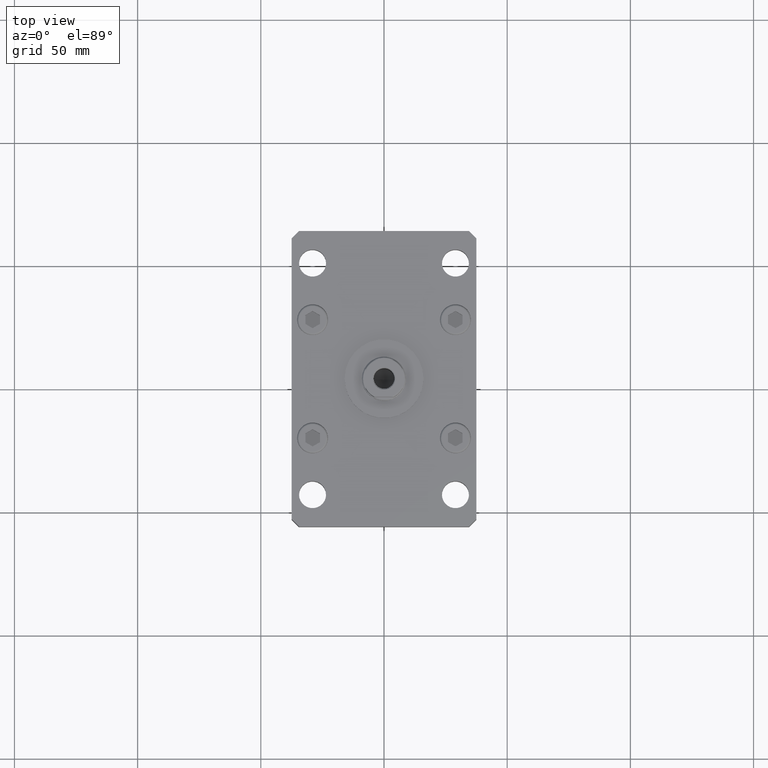
[diagram: clean part render]
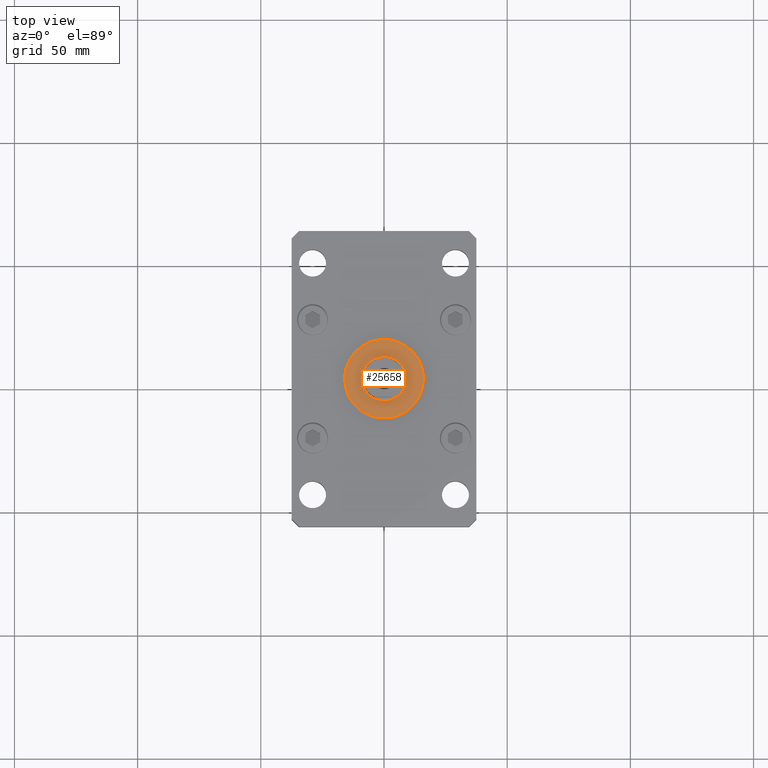
[diagram: same view with one face highlighted and labeled with its STEP entity id]
A machine part, top view. The second image highlights one B-rep face of the part: STEP entity #25658.
In plain terms, the highlighted planar face has unit normal (0, 0, 1).
Its self-contained STEP definition (entity closure, byte-faithful):
#1012 = CARTESIAN_POINT ( 'NONE',  ( 0.000000000000000000, 0.000000000000000000, 17.00000000000000000 ) ) ;
#2065 = PLANE ( 'NONE',  #17694 ) ;
#4028 = AXIS2_PLACEMENT_3D ( 'NONE', #28697, #12165, #49826 ) ;
#4722 = CARTESIAN_POINT ( 'NONE',  ( 16.00000000000000000, 1.959434878635765131E-15, 17.00000000000000000 ) ) ;
#5348 = FACE_OUTER_BOUND ( 'NONE', #9274, .T. ) ;
#6803 = ORIENTED_EDGE ( 'NONE', *, *, #21643, .F. ) ;
#8202 = DIRECTION ( 'NONE',  ( 1.000000000000000000, 0.000000000000000000, 0.000000000000000000 ) ) ;
#9084 = CARTESIAN_POINT ( 'NONE',  ( 0.000000000000000000, 0.000000000000000000, 17.00000000000000000 ) ) ;
#9274 = EDGE_LOOP ( 'NONE', ( #15069, #43803 ) ) ;
#9820 = VERTEX_POINT ( 'NONE', #38133 ) ;
#11587 = CIRCLE ( 'NONE', #21979, 9.000000000000000000 ) ;
#12165 = DIRECTION ( 'NONE',  ( 0.000000000000000000, 0.000000000000000000, 1.000000000000000000 ) ) ;
#13622 = VERTEX_POINT ( 'NONE', #4722 ) ;
#15069 = ORIENTED_EDGE ( 'NONE', *, *, #36562, .T. ) ;
#17694 = AXIS2_PLACEMENT_3D ( 'NONE', #1012, #35146, #51667 ) ;
#18504 = AXIS2_PLACEMENT_3D ( 'NONE', #44551, #52941, #29064 ) ;
#18543 = CARTESIAN_POINT ( 'NONE',  ( -9.000000000000000000, 1.102182119232617714E-15, 17.00000000000000000 ) ) ;
#20407 = CARTESIAN_POINT ( 'NONE',  ( 0.000000000000000000, 0.000000000000000000, 17.00000000000000000 ) ) ;
#21025 = EDGE_LOOP ( 'NONE', ( #22612, #6803 ) ) ;
#21643 = EDGE_CURVE ( 'NONE', #53292, #9820, #49610, .T. ) ;
#21979 = AXIS2_PLACEMENT_3D ( 'NONE', #9084, #42701, #38903 ) ;
#22612 = ORIENTED_EDGE ( 'NONE', *, *, #48101, .F. ) ;
#23075 = CIRCLE ( 'NONE', #4028, 16.00000000000000000 ) ;
#25658 = ADVANCED_FACE ( 'NONE', ( #38943, #5348 ), #2065, .T. ) ;
#28697 = CARTESIAN_POINT ( 'NONE',  ( 0.000000000000000000, 0.000000000000000000, 17.00000000000000000 ) ) ;
#29064 = DIRECTION ( 'NONE',  ( 1.000000000000000000, 0.000000000000000000, 0.000000000000000000 ) ) ;
#33228 = CIRCLE ( 'NONE', #18504, 16.00000000000000000 ) ;
#35146 = DIRECTION ( 'NONE',  ( 0.000000000000000000, 0.000000000000000000, 1.000000000000000000 ) ) ;
#36562 = EDGE_CURVE ( 'NONE', #46849, #13622, #23075, .T. ) ;
#38133 = CARTESIAN_POINT ( 'NONE',  ( 9.000000000000000000, 0.000000000000000000, 17.00000000000000000 ) ) ;
#38756 = CARTESIAN_POINT ( 'NONE',  ( -16.00000000000000000, 0.000000000000000000, 17.00000000000000000 ) ) ;
#38903 = DIRECTION ( 'NONE',  ( 1.000000000000000000, 0.000000000000000000, 0.000000000000000000 ) ) ;
#38943 = FACE_BOUND ( 'NONE', #21025, .T. ) ;
#42701 = DIRECTION ( 'NONE',  ( 0.000000000000000000, 0.000000000000000000, 1.000000000000000000 ) ) ;
#43546 = AXIS2_PLACEMENT_3D ( 'NONE', #20407, #48891, #8202 ) ;
#43803 = ORIENTED_EDGE ( 'NONE', *, *, #47509, .T. ) ;
#44551 = CARTESIAN_POINT ( 'NONE',  ( 0.000000000000000000, 0.000000000000000000, 17.00000000000000000 ) ) ;
#46849 = VERTEX_POINT ( 'NONE', #38756 ) ;
#47509 = EDGE_CURVE ( 'NONE', #13622, #46849, #33228, .T. ) ;
#48101 = EDGE_CURVE ( 'NONE', #9820, #53292, #11587, .T. ) ;
#48891 = DIRECTION ( 'NONE',  ( 0.000000000000000000, 0.000000000000000000, 1.000000000000000000 ) ) ;
#49610 = CIRCLE ( 'NONE', #43546, 9.000000000000000000 ) ;
#49826 = DIRECTION ( 'NONE',  ( 1.000000000000000000, 0.000000000000000000, 0.000000000000000000 ) ) ;
#51667 = DIRECTION ( 'NONE',  ( 1.000000000000000000, 0.000000000000000000, -0.000000000000000000 ) ) ;
#52941 = DIRECTION ( 'NONE',  ( 0.000000000000000000, 0.000000000000000000, 1.000000000000000000 ) ) ;
#53292 = VERTEX_POINT ( 'NONE', #18543 ) ;